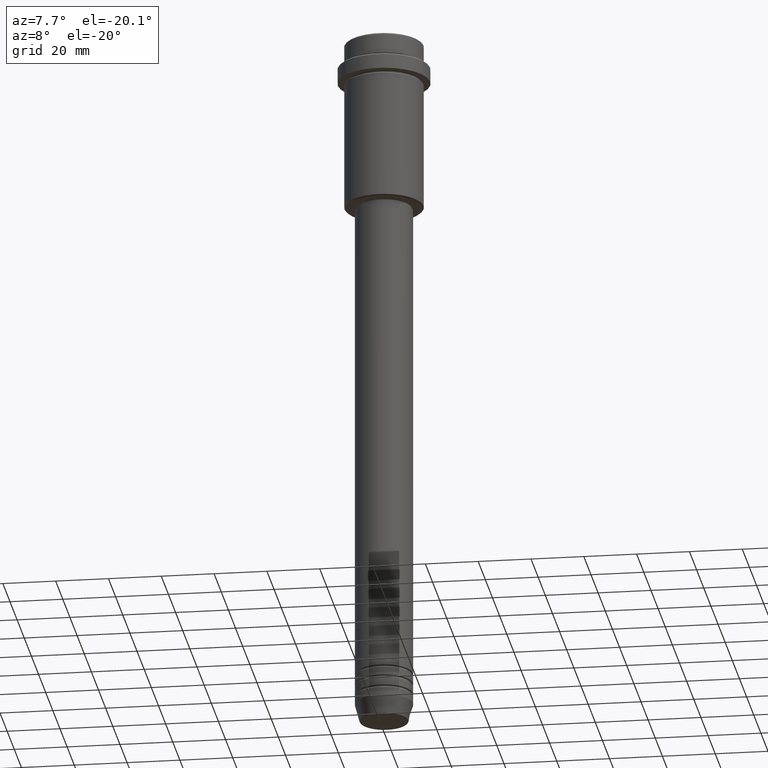
[diagram: clean part render]
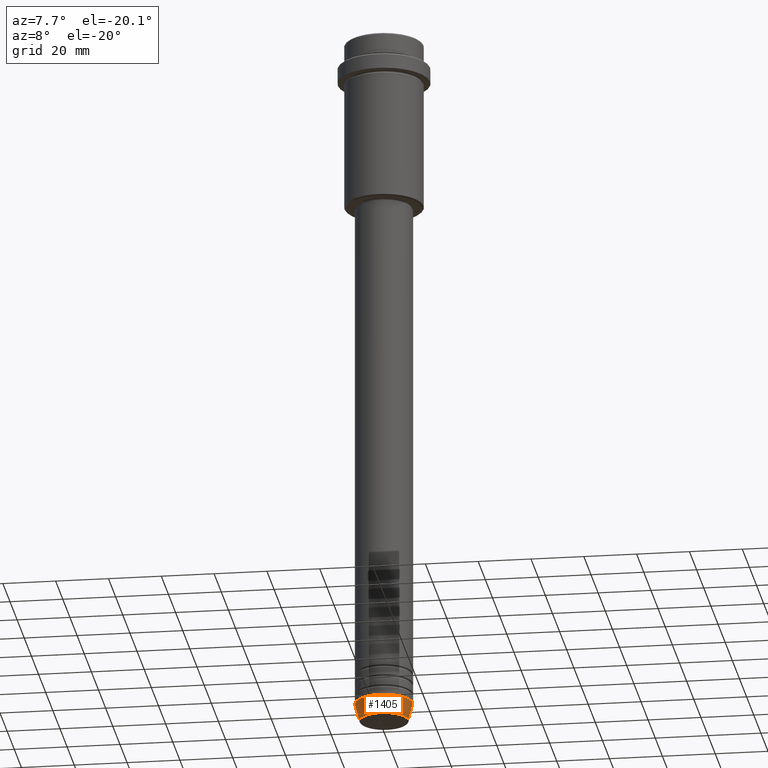
[diagram: same view with one face highlighted and labeled with its STEP entity id]
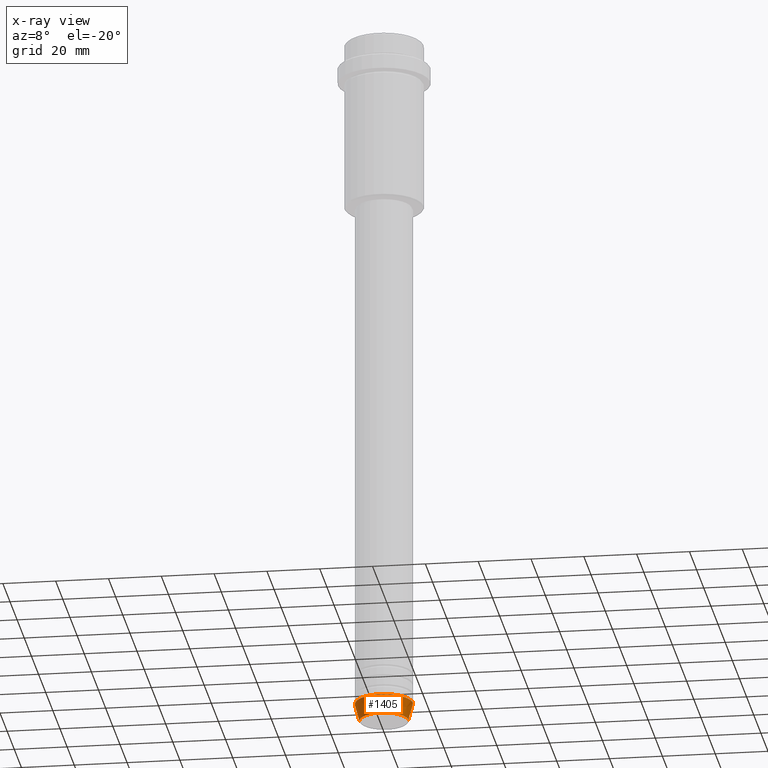
[diagram: x-ray of the same camera — body ghosted, the highlighted face saturated]
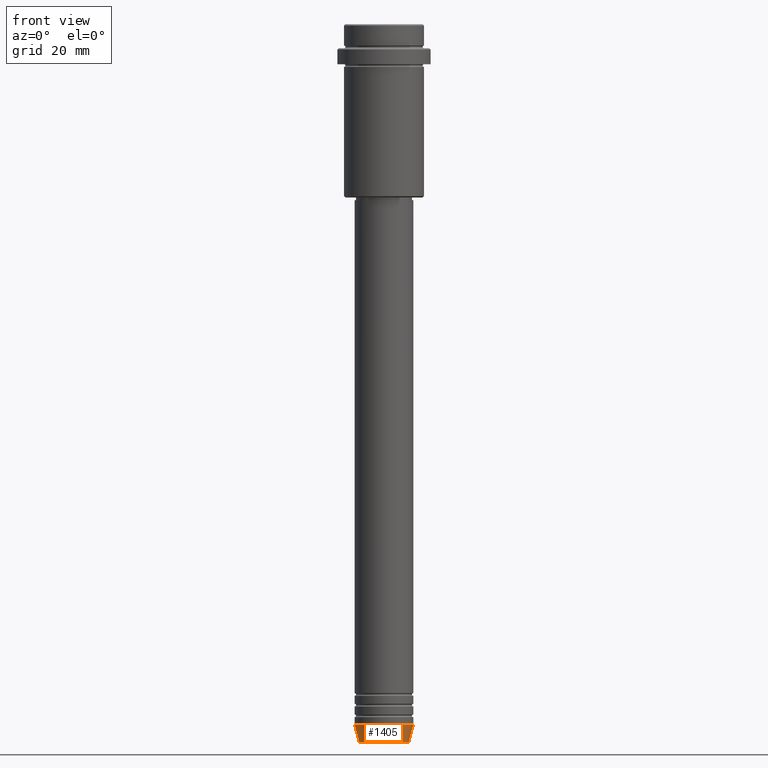
[diagram: same view with one face highlighted and labeled with its STEP entity id]
A machine part, auxiliary view. The second image highlights one B-rep face of the part: STEP entity #1405.
The next image is the same camera in x-ray: the body ghosted, the highlighted face saturated — about 0% of this face is hidden behind the body in this view.
A second angle (front view) of the same face is appended — the face is thin or edge-on in the first view.
In plain terms, the highlighted conical surface has half-angle 15 deg.
Its self-contained STEP definition (entity closure, byte-faithful):
#27 = VERTEX_POINT ( 'NONE', #610 ) ;
#42 = DIRECTION ( 'NONE',  ( -0.2588190451025213501, 3.169619151431772337E-17, 0.9659258262890680902 ) ) ;
#52 = DIRECTION ( 'NONE',  ( 0.2588190451025213501, 0.000000000000000000, 0.9659258262890680902 ) ) ;
#75 = DIRECTION ( 'NONE',  ( 1.000000000000000000, 0.000000000000000000, 0.000000000000000000 ) ) ;
#140 = VECTOR ( 'NONE', #42, 1000.000000000000000 ) ;
#146 = LINE ( 'NONE', #1034, #140 ) ;
#162 = VECTOR ( 'NONE', #52, 1000.000000000000000 ) ;
#320 = AXIS2_PLACEMENT_3D ( 'NONE', #722, #523, #75 ) ;
#378 = CARTESIAN_POINT ( 'NONE',  ( 0.000000000000000000, 0.000000000000000000, -263.0000000000000000 ) ) ;
#442 = VERTEX_POINT ( 'NONE', #1078 ) ;
#508 = FACE_OUTER_BOUND ( 'NONE', #1359, .T. ) ;
#512 = DIRECTION ( 'NONE',  ( 1.000000000000000000, 0.000000000000000000, 0.000000000000000000 ) ) ;
#523 = DIRECTION ( 'NONE',  ( -0.000000000000000000, -0.000000000000000000, 1.000000000000000000 ) ) ;
#587 = CARTESIAN_POINT ( 'NONE',  ( 0.000000000000000000, 0.000000000000000000, -263.0000000000000000 ) ) ;
#610 = CARTESIAN_POINT ( 'NONE',  ( 11.00000000000000000, 0.000000000000000000, -263.0000000000000000 ) ) ;
#619 = ORIENTED_EDGE ( 'NONE', *, *, #773, .F. ) ;
#636 = AXIS2_PLACEMENT_3D ( 'NONE', #587, #1028, #907 ) ;
#664 = CIRCLE ( 'NONE', #320, 9.223655072137189492 ) ;
#676 = ORIENTED_EDGE ( 'NONE', *, *, #868, .T. ) ;
#722 = CARTESIAN_POINT ( 'NONE',  ( 0.000000000000000000, 0.000000000000000000, -269.6294095225512706 ) ) ;
#724 = EDGE_CURVE ( 'NONE', #1195, #27, #1256, .T. ) ;
#773 = EDGE_CURVE ( 'NONE', #1299, #1195, #146, .T. ) ;
#849 = CARTESIAN_POINT ( 'NONE',  ( -9.223655072137189492, 1.238341722557647202E-15, -269.6294095225512706 ) ) ;
#868 = EDGE_CURVE ( 'NONE', #1299, #442, #664, .T. ) ;
#907 = DIRECTION ( 'NONE',  ( 1.000000000000000000, 0.000000000000000000, 0.000000000000000000 ) ) ;
#924 = CONICAL_SURFACE ( 'NONE', #1356, 11.00000000000000000, 0.2617993877991500740 ) ;
#925 = CARTESIAN_POINT ( 'NONE',  ( -11.00000000000000000, 1.347111479062088405E-15, -263.0000000000000000 ) ) ;
#936 = DIRECTION ( 'NONE',  ( -0.000000000000000000, -0.000000000000000000, 1.000000000000000000 ) ) ;
#1028 = DIRECTION ( 'NONE',  ( -0.000000000000000000, -0.000000000000000000, 1.000000000000000000 ) ) ;
#1034 = CARTESIAN_POINT ( 'NONE',  ( -11.00000000000000000, 1.347111479062088405E-15, -263.0000000000000000 ) ) ;
#1078 = CARTESIAN_POINT ( 'NONE',  ( 9.223655072137189492, 0.000000000000000000, -269.6294095225512706 ) ) ;
#1195 = VERTEX_POINT ( 'NONE', #925 ) ;
#1256 = CIRCLE ( 'NONE', #636, 11.00000000000000000 ) ;
#1268 = LINE ( 'NONE', #1381, #162 ) ;
#1284 = ORIENTED_EDGE ( 'NONE', *, *, #1362, .T. ) ;
#1286 = ORIENTED_EDGE ( 'NONE', *, *, #724, .F. ) ;
#1299 = VERTEX_POINT ( 'NONE', #849 ) ;
#1356 = AXIS2_PLACEMENT_3D ( 'NONE', #378, #936, #512 ) ;
#1359 = EDGE_LOOP ( 'NONE', ( #619, #676, #1284, #1286 ) ) ;
#1362 = EDGE_CURVE ( 'NONE', #442, #27, #1268, .T. ) ;
#1381 = CARTESIAN_POINT ( 'NONE',  ( 11.00000000000000000, 0.000000000000000000, -263.0000000000000000 ) ) ;
#1405 = ADVANCED_FACE ( 'NONE', ( #508 ), #924, .T. ) ;